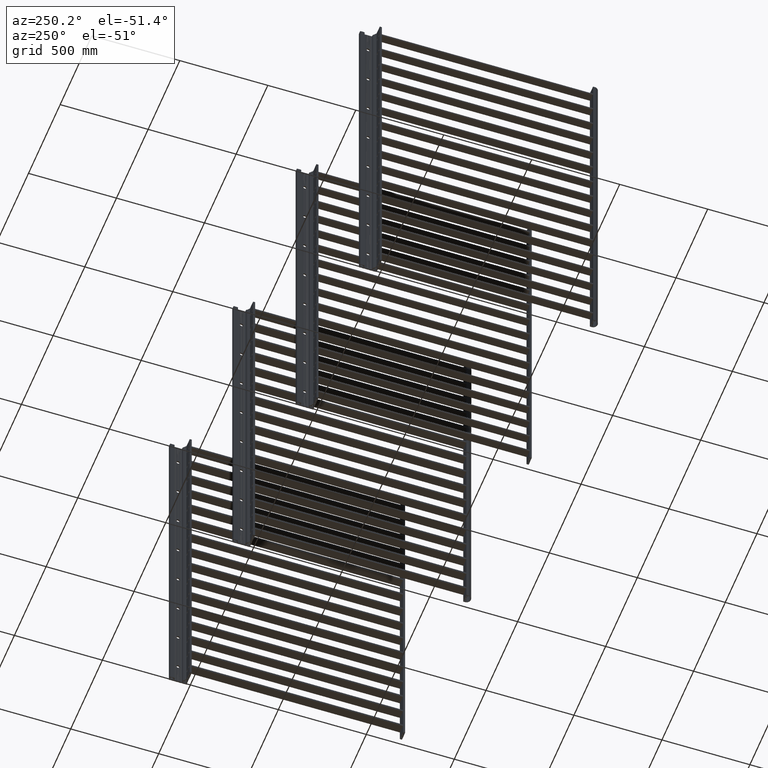
[diagram: clean part render]
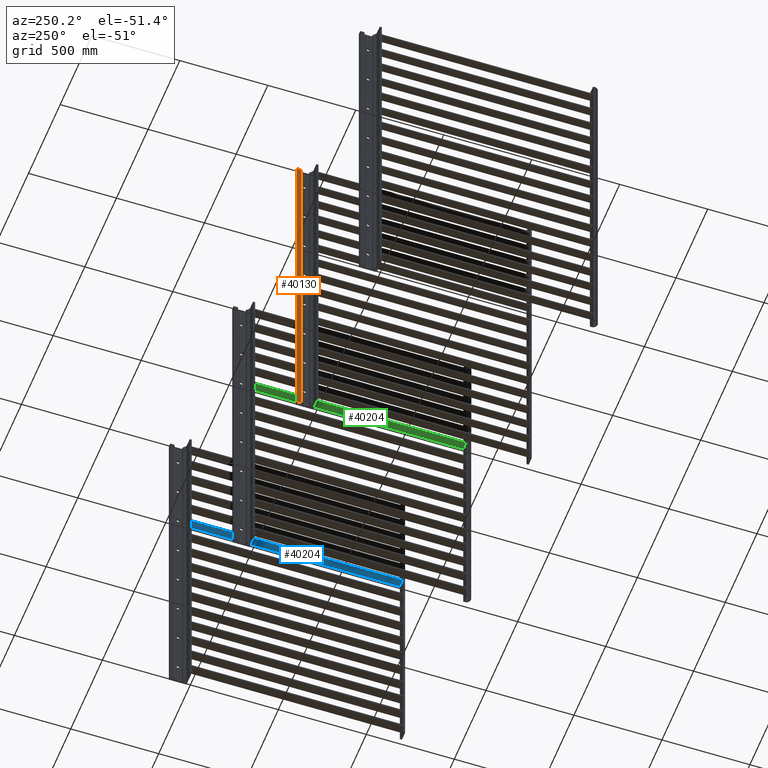
[diagram: same view with three faces highlighted in distinct colors, each labeled with its STEP entity id]
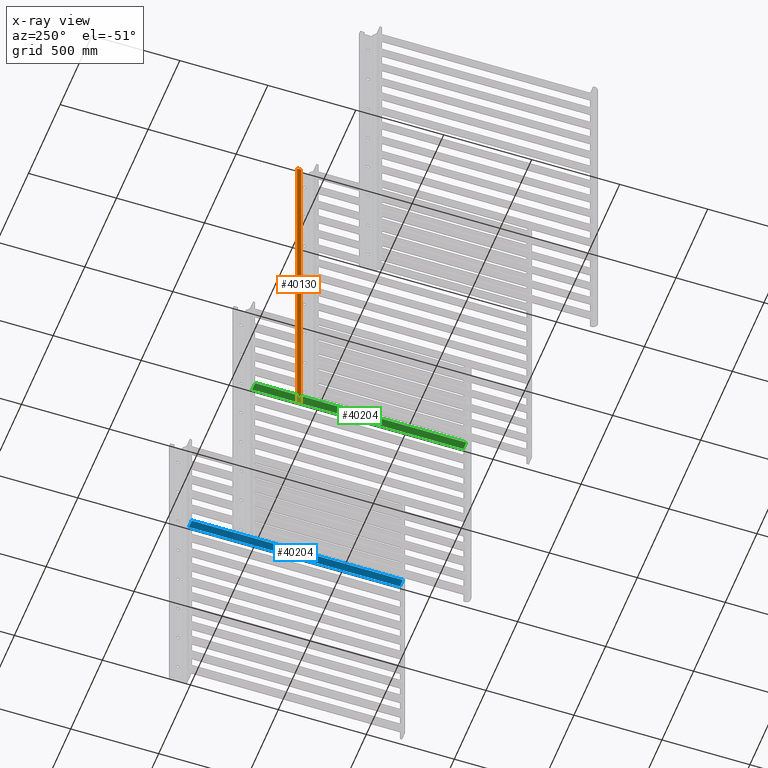
[diagram: x-ray of the same camera — body ghosted, the three highlighted faces saturated]
A machine part, auxiliary view with three faces highlighted in distinct colors.
The next image is the same camera in x-ray (body ghosted, the three faces saturated) — at least one of them is partly hidden behind the body in this view.
Their STEP definitions:

[orange] entity #40130 — the highlighted planar face has unit normal (-1, 0, -0).
#1249=PLANE('',#43962);
#3676=LINE('',#75894,#6625);
#3677=LINE('',#75897,#6626);
#3678=LINE('',#75899,#6627);
#3679=LINE('',#75900,#6628);
#6625=VECTOR('',#53902,10.);
#6626=VECTOR('',#53905,10.);
#6627=VECTOR('',#53906,10.);
#6628=VECTOR('',#53907,10.);
#10010=FACE_OUTER_BOUND('',#12187,.T.);
#12187=EDGE_LOOP('',(#33650,#33651,#33652,#33653));
#17959=VERTEX_POINT('',#75890);
#17960=VERTEX_POINT('',#75892);
#17961=VERTEX_POINT('',#75896);
#17962=VERTEX_POINT('',#75898);
#23650=EDGE_CURVE('',#17959,#17960,#3676,.T.);
#23651=EDGE_CURVE('',#17961,#17959,#3677,.T.);
#23652=EDGE_CURVE('',#17962,#17960,#3678,.T.);
#23653=EDGE_CURVE('',#17961,#17962,#3679,.T.);
#33650=ORIENTED_EDGE('',*,*,#23651,.T.);
#33651=ORIENTED_EDGE('',*,*,#23650,.T.);
#33652=ORIENTED_EDGE('',*,*,#23652,.F.);
#33653=ORIENTED_EDGE('',*,*,#23653,.F.);
#40130=ADVANCED_FACE('',(#10010),#1249,.T.);
#43962=AXIS2_PLACEMENT_3D('',#75895,#53903,#53904);
#53902=DIRECTION('',(0.,0.,1.));
#53903=DIRECTION('center_axis',(-1.,0.,0.));
#53904=DIRECTION('ref_axis',(0.,-1.,0.));
#53905=DIRECTION('',(0.,-1.,0.));
#53906=DIRECTION('',(0.,-1.,0.));
#53907=DIRECTION('',(0.,0.,1.));
#75890=CARTESIAN_POINT('',(65.0790484550112,77.1433258091984,1.));
#75892=CARTESIAN_POINT('',(65.0790484550112,77.1433258091984,1999.));
#75894=CARTESIAN_POINT('',(65.0790484550112,77.1433258091984,0.));
#75895=CARTESIAN_POINT('Origin',(65.0790484550112,99.7433258091987,0.));
#75896=CARTESIAN_POINT('',(65.0790484550112,99.7433258091987,1.));
#75897=CARTESIAN_POINT('',(65.0790484550112,99.7433258091987,1.));
#75898=CARTESIAN_POINT('',(65.0790484550112,99.7433258091987,1999.));
#75899=CARTESIAN_POINT('',(65.0790484550112,99.7433258091987,1999.));
#75900=CARTESIAN_POINT('',(65.0790484550112,99.7433258091987,0.));

[blue] entity #40204 — the highlighted planar face has unit normal (-0, 0, -1).
#1284=PLANE('',#44115);
#3801=LINE('',#76290,#6750);
#3814=LINE('',#76329,#6763);
#3815=LINE('',#76331,#6764);
#3816=LINE('',#76332,#6765);
#6750=VECTOR('',#54307,10.);
#6763=VECTOR('',#54346,10.);
#6764=VECTOR('',#54349,10.);
#6765=VECTOR('',#54350,10.);
#10084=FACE_OUTER_BOUND('',#12273,.T.);
#12273=EDGE_LOOP('',(#34870,#34871,#34872,#34873));
#18090=VERTEX_POINT('',#76287);
#18091=VERTEX_POINT('',#76289);
#18103=VERTEX_POINT('',#76325);
#18104=VERTEX_POINT('',#76327);
#23846=EDGE_CURVE('',#18090,#18091,#3801,.T.);
#23866=EDGE_CURVE('',#18103,#18104,#3814,.T.);
#23867=EDGE_CURVE('',#18090,#18103,#3815,.T.);
#23868=EDGE_CURVE('',#18091,#18104,#3816,.T.);
#34870=ORIENTED_EDGE('',*,*,#23867,.T.);
#34871=ORIENTED_EDGE('',*,*,#23866,.T.);
#34872=ORIENTED_EDGE('',*,*,#23868,.F.);
#34873=ORIENTED_EDGE('',*,*,#23846,.F.);
#40204=ADVANCED_FACE('',(#10084),#1284,.T.);
#44115=AXIS2_PLACEMENT_3D('',#76330,#54347,#54348);
#54307=DIRECTION('',(0.,0.,1.));
#54346=DIRECTION('',(0.,0.,1.));
#54347=DIRECTION('center_axis',(0.,1.,0.));
#54348=DIRECTION('ref_axis',(-1.,0.,0.));
#54349=DIRECTION('',(-1.,0.,0.));
#54350=DIRECTION('',(-1.,0.,0.));
#76287=CARTESIAN_POINT('',(48.0057648647144,12.4386954143283,0.));
#76289=CARTESIAN_POINT('',(48.0057648647144,12.4386954143283,1200.));
#76290=CARTESIAN_POINT('',(48.0057648647144,12.4386954143283,0.));
#76325=CARTESIAN_POINT('',(1.00576486471437,12.4386954143283,0.));
#76327=CARTESIAN_POINT('',(1.00576486471437,12.4386954143283,1200.));
#76329=CARTESIAN_POINT('',(1.00576486471437,12.4386954143283,0.));
#76330=CARTESIAN_POINT('Origin',(48.0057648647144,12.4386954143283,0.));
#76331=CARTESIAN_POINT('',(48.0057648647144,12.4386954143283,0.));
#76332=CARTESIAN_POINT('',(48.0057648647144,12.4386954143283,1200.));

[green] entity #40204 — the highlighted planar face has unit normal (-0, 0, -1).
#1284=PLANE('',#44115);
#3801=LINE('',#76290,#6750);
#3814=LINE('',#76329,#6763);
#3815=LINE('',#76331,#6764);
#3816=LINE('',#76332,#6765);
#6750=VECTOR('',#54307,10.);
#6763=VECTOR('',#54346,10.);
#6764=VECTOR('',#54349,10.);
#6765=VECTOR('',#54350,10.);
#10084=FACE_OUTER_BOUND('',#12273,.T.);
#12273=EDGE_LOOP('',(#34870,#34871,#34872,#34873));
#18090=VERTEX_POINT('',#76287);
#18091=VERTEX_POINT('',#76289);
#18103=VERTEX_POINT('',#76325);
#18104=VERTEX_POINT('',#76327);
#23846=EDGE_CURVE('',#18090,#18091,#3801,.T.);
#23866=EDGE_CURVE('',#18103,#18104,#3814,.T.);
#23867=EDGE_CURVE('',#18090,#18103,#3815,.T.);
#23868=EDGE_CURVE('',#18091,#18104,#3816,.T.);
#34870=ORIENTED_EDGE('',*,*,#23867,.T.);
#34871=ORIENTED_EDGE('',*,*,#23866,.T.);
#34872=ORIENTED_EDGE('',*,*,#23868,.F.);
#34873=ORIENTED_EDGE('',*,*,#23846,.F.);
#40204=ADVANCED_FACE('',(#10084),#1284,.T.);
#44115=AXIS2_PLACEMENT_3D('',#76330,#54347,#54348);
#54307=DIRECTION('',(0.,0.,1.));
#54346=DIRECTION('',(0.,0.,1.));
#54347=DIRECTION('center_axis',(0.,1.,0.));
#54348=DIRECTION('ref_axis',(-1.,0.,0.));
#54349=DIRECTION('',(-1.,0.,0.));
#54350=DIRECTION('',(-1.,0.,0.));
#76287=CARTESIAN_POINT('',(48.0057648647144,12.4386954143283,0.));
#76289=CARTESIAN_POINT('',(48.0057648647144,12.4386954143283,1200.));
#76290=CARTESIAN_POINT('',(48.0057648647144,12.4386954143283,0.));
#76325=CARTESIAN_POINT('',(1.00576486471437,12.4386954143283,0.));
#76327=CARTESIAN_POINT('',(1.00576486471437,12.4386954143283,1200.));
#76329=CARTESIAN_POINT('',(1.00576486471437,12.4386954143283,0.));
#76330=CARTESIAN_POINT('Origin',(48.0057648647144,12.4386954143283,0.));
#76331=CARTESIAN_POINT('',(48.0057648647144,12.4386954143283,0.));
#76332=CARTESIAN_POINT('',(48.0057648647144,12.4386954143283,1200.));